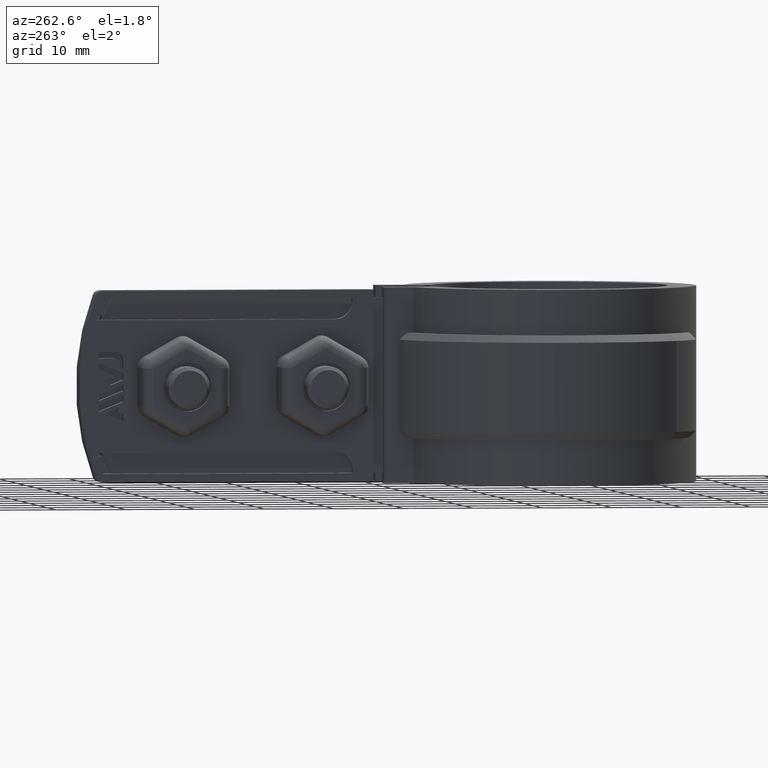
[diagram: clean part render]
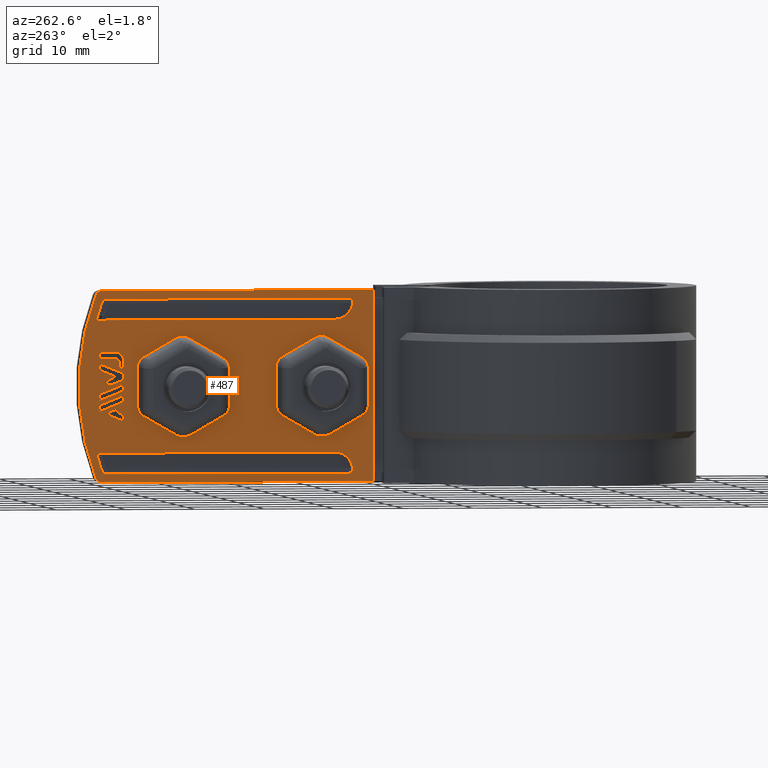
[diagram: same view with one face highlighted and labeled with its STEP entity id]
A machine part, auxiliary view. The second image highlights one B-rep face of the part: STEP entity #487.
In plain terms, the highlighted planar face has unit normal (-1, 0, -0).
Its self-contained STEP definition (entity closure, byte-faithful):
#487 = ADVANCED_FACE( '', ( #970, #971, #972, #973, #974, #975, #976, #977, #978, #979 ), #980, .T. );
#970 = FACE_OUTER_BOUND( '', #2094, .T. );
#971 = FACE_BOUND( '', #2095, .T. );
#972 = FACE_BOUND( '', #2096, .T. );
#973 = FACE_BOUND( '', #2097, .T. );
#974 = FACE_BOUND( '', #2098, .T. );
#975 = FACE_BOUND( '', #2099, .T. );
#976 = FACE_BOUND( '', #2100, .T. );
#977 = FACE_BOUND( '', #2101, .T. );
#978 = FACE_BOUND( '', #2102, .T. );
#979 = FACE_BOUND( '', #2103, .T. );
#980 = PLANE( '', #2104 );
#2094 = EDGE_LOOP( '', ( #4836, #4837, #4838, #4839, #4840, #4841 ) );
#2095 = EDGE_LOOP( '', ( #4842, #4843, #4844, #4845, #4846 ) );
#2096 = EDGE_LOOP( '', ( #4847, #4848, #4849, #4850 ) );
#2097 = EDGE_LOOP( '', ( #4851, #4852, #4853, #4854, #4855 ) );
#2098 = EDGE_LOOP( '', ( #4856, #4857, #4858, #4859, #4860, #4861, #4862, #4863, #4864, #4865, #4866, #4867 ) );
#2099 = EDGE_LOOP( '', ( #4868, #4869, #4870, #4871, #4872, #4873, #4874, #4875, #4876, #4877, #4878, #4879 ) );
#2100 = EDGE_LOOP( '', ( #4880, #4881, #4882, #4883, #4884 ) );
#2101 = EDGE_LOOP( '', ( #4885, #4886, #4887, #4888, #4889, #4890, #4891, #4892, #4893, #4894, #4895, #4896, #4897, #4898, #4899, #4900, #4901, #4902, #4903, #4904, #4905, #4906, #4907, #4908, #4909, #4910, #4911, #4912, #4913, #4914, #4915, #4916, #4917, #4918, #4919, #4920, #4921, #4922, #4923, #4924 ) );
#2102 = EDGE_LOOP( '', ( #4925, #4926, #4927, #4928, #4929, #4930, #4931 ) );
#2103 = EDGE_LOOP( '', ( #4932, #4933, #4934, #4935 ) );
#2104 = AXIS2_PLACEMENT_3D( '', #4936, #4937, #4938 );
#4836 = ORIENTED_EDGE( '', *, *, #6948, .T. );
#4837 = ORIENTED_EDGE( '', *, *, #6949, .T. );
#4838 = ORIENTED_EDGE( '', *, *, #6950, .T. );
#4839 = ORIENTED_EDGE( '', *, *, #6951, .T. );
#4840 = ORIENTED_EDGE( '', *, *, #6952, .T. );
#4841 = ORIENTED_EDGE( '', *, *, #6953, .T. );
#4842 = ORIENTED_EDGE( '', *, *, #6954, .T. );
#4843 = ORIENTED_EDGE( '', *, *, #6955, .T. );
#4844 = ORIENTED_EDGE( '', *, *, #6956, .T. );
#4845 = ORIENTED_EDGE( '', *, *, #6957, .T. );
#4846 = ORIENTED_EDGE( '', *, *, #6958, .T. );
#4847 = ORIENTED_EDGE( '', *, *, #6959, .T. );
#4848 = ORIENTED_EDGE( '', *, *, #6960, .T. );
#4849 = ORIENTED_EDGE( '', *, *, #6961, .T. );
#4850 = ORIENTED_EDGE( '', *, *, #6962, .T. );
#4851 = ORIENTED_EDGE( '', *, *, #6963, .T. );
#4852 = ORIENTED_EDGE( '', *, *, #6964, .F. );
#4853 = ORIENTED_EDGE( '', *, *, #6965, .T. );
#4854 = ORIENTED_EDGE( '', *, *, #6966, .T. );
#4855 = ORIENTED_EDGE( '', *, *, #6967, .T. );
#4856 = ORIENTED_EDGE( '', *, *, #6968, .F. );
#4857 = ORIENTED_EDGE( '', *, *, #6969, .F. );
#4858 = ORIENTED_EDGE( '', *, *, #6970, .F. );
#4859 = ORIENTED_EDGE( '', *, *, #6971, .F. );
#4860 = ORIENTED_EDGE( '', *, *, #6972, .F. );
#4861 = ORIENTED_EDGE( '', *, *, #6973, .F. );
#4862 = ORIENTED_EDGE( '', *, *, #6974, .F. );
#4863 = ORIENTED_EDGE( '', *, *, #6975, .F. );
#4864 = ORIENTED_EDGE( '', *, *, #6976, .F. );
#4865 = ORIENTED_EDGE( '', *, *, #6977, .F. );
#4866 = ORIENTED_EDGE( '', *, *, #6978, .F. );
#4867 = ORIENTED_EDGE( '', *, *, #6979, .F. );
#4868 = ORIENTED_EDGE( '', *, *, #6980, .F. );
#4869 = ORIENTED_EDGE( '', *, *, #6981, .F. );
#4870 = ORIENTED_EDGE( '', *, *, #6982, .F. );
#4871 = ORIENTED_EDGE( '', *, *, #6983, .F. );
#4872 = ORIENTED_EDGE( '', *, *, #6984, .F. );
#4873 = ORIENTED_EDGE( '', *, *, #6985, .F. );
#4874 = ORIENTED_EDGE( '', *, *, #6986, .F. );
#4875 = ORIENTED_EDGE( '', *, *, #6987, .F. );
#4876 = ORIENTED_EDGE( '', *, *, #6988, .F. );
#4877 = ORIENTED_EDGE( '', *, *, #6989, .F. );
#4878 = ORIENTED_EDGE( '', *, *, #6990, .F. );
#4879 = ORIENTED_EDGE( '', *, *, #6991, .F. );
#4880 = ORIENTED_EDGE( '', *, *, #6992, .T. );
#4881 = ORIENTED_EDGE( '', *, *, #6993, .T. );
#4882 = ORIENTED_EDGE( '', *, *, #6994, .T. );
#4883 = ORIENTED_EDGE( '', *, *, #6995, .T. );
#4884 = ORIENTED_EDGE( '', *, *, #6996, .F. );
#4885 = ORIENTED_EDGE( '', *, *, #6997, .T. );
#4886 = ORIENTED_EDGE( '', *, *, #6998, .T. );
#4887 = ORIENTED_EDGE( '', *, *, #6999, .T. );
#4888 = ORIENTED_EDGE( '', *, *, #7000, .T. );
#4889 = ORIENTED_EDGE( '', *, *, #7001, .T. );
#4890 = ORIENTED_EDGE( '', *, *, #7002, .T. );
#4891 = ORIENTED_EDGE( '', *, *, #7003, .T. );
#4892 = ORIENTED_EDGE( '', *, *, #7004, .T. );
#4893 = ORIENTED_EDGE( '', *, *, #7005, .T. );
#4894 = ORIENTED_EDGE( '', *, *, #7006, .T. );
#4895 = ORIENTED_EDGE( '', *, *, #7007, .T. );
#4896 = ORIENTED_EDGE( '', *, *, #7008, .T. );
#4897 = ORIENTED_EDGE( '', *, *, #7009, .T. );
#4898 = ORIENTED_EDGE( '', *, *, #7010, .T. );
#4899 = ORIENTED_EDGE( '', *, *, #7011, .T. );
#4900 = ORIENTED_EDGE( '', *, *, #7012, .T. );
#4901 = ORIENTED_EDGE( '', *, *, #7013, .T. );
#4902 = ORIENTED_EDGE( '', *, *, #7014, .T. );
#4903 = ORIENTED_EDGE( '', *, *, #7015, .T. );
#4904 = ORIENTED_EDGE( '', *, *, #7016, .T. );
#4905 = ORIENTED_EDGE( '', *, *, #7017, .T. );
#4906 = ORIENTED_EDGE( '', *, *, #7018, .T. );
#4907 = ORIENTED_EDGE( '', *, *, #7019, .T. );
#4908 = ORIENTED_EDGE( '', *, *, #7020, .T. );
#4909 = ORIENTED_EDGE( '', *, *, #7021, .T. );
#4910 = ORIENTED_EDGE( '', *, *, #7022, .T. );
#4911 = ORIENTED_EDGE( '', *, *, #7023, .T. );
#4912 = ORIENTED_EDGE( '', *, *, #7024, .T. );
#4913 = ORIENTED_EDGE( '', *, *, #7025, .T. );
#4914 = ORIENTED_EDGE( '', *, *, #7026, .T. );
#4915 = ORIENTED_EDGE( '', *, *, #7027, .T. );
#4916 = ORIENTED_EDGE( '', *, *, #7028, .T. );
#4917 = ORIENTED_EDGE( '', *, *, #7029, .T. );
#4918 = ORIENTED_EDGE( '', *, *, #7030, .T. );
#4919 = ORIENTED_EDGE( '', *, *, #7031, .T. );
#4920 = ORIENTED_EDGE( '', *, *, #7032, .T. );
#4921 = ORIENTED_EDGE( '', *, *, #7033, .T. );
#4922 = ORIENTED_EDGE( '', *, *, #7034, .T. );
#4923 = ORIENTED_EDGE( '', *, *, #7035, .T. );
#4924 = ORIENTED_EDGE( '', *, *, #7036, .T. );
#4925 = ORIENTED_EDGE( '', *, *, #7037, .T. );
#4926 = ORIENTED_EDGE( '', *, *, #7038, .T. );
#4927 = ORIENTED_EDGE( '', *, *, #7039, .T. );
#4928 = ORIENTED_EDGE( '', *, *, #7040, .T. );
#4929 = ORIENTED_EDGE( '', *, *, #7041, .T. );
#4930 = ORIENTED_EDGE( '', *, *, #7042, .T. );
#4931 = ORIENTED_EDGE( '', *, *, #7043, .T. );
#4932 = ORIENTED_EDGE( '', *, *, #7044, .T. );
#4933 = ORIENTED_EDGE( '', *, *, #7045, .T. );
#4934 = ORIENTED_EDGE( '', *, *, #7046, .T. );
#4935 = ORIENTED_EDGE( '', *, *, #7047, .T. );
#4936 = CARTESIAN_POINT( '', ( -6.70000000000002, 32.1043584449257, -12.4999999999987 ) );
#4937 = DIRECTION( '', ( -1.00000000000000, 7.00331983426594E-017, -2.99848040556711E-018 ) );
#4938 = DIRECTION( '', ( -2.99848040556711E-018, 0.000000000000000, 1.00000000000000 ) );
#6948 = EDGE_CURVE( '', #8112, #8113, #8114, .T. );
#6949 = EDGE_CURVE( '', #8113, #8115, #8116, .T. );
#6950 = EDGE_CURVE( '', #8115, #8117, #8118, .T. );
#6951 = EDGE_CURVE( '', #8117, #8119, #8120, .T. );
#6952 = EDGE_CURVE( '', #8119, #8121, #8122, .T. );
#6953 = EDGE_CURVE( '', #8121, #8112, #8123, .T. );
#6954 = EDGE_CURVE( '', #8124, #8125, #8126, .T. );
#6955 = EDGE_CURVE( '', #8125, #8127, #8128, .T. );
#6956 = EDGE_CURVE( '', #8127, #8129, #8130, .T. );
#6957 = EDGE_CURVE( '', #8129, #8131, #8132, .T. );
#6958 = EDGE_CURVE( '', #8131, #8124, #8133, .T. );
#6959 = EDGE_CURVE( '', #8134, #8135, #8136, .T. );
#6960 = EDGE_CURVE( '', #8135, #8137, #8138, .T. );
#6961 = EDGE_CURVE( '', #8137, #8139, #8140, .T. );
#6962 = EDGE_CURVE( '', #8139, #8134, #8141, .T. );
#6963 = EDGE_CURVE( '', #8142, #8143, #8144, .T. );
#6964 = EDGE_CURVE( '', #8145, #8143, #8146, .T. );
#6965 = EDGE_CURVE( '', #8145, #8147, #8148, .T. );
#6966 = EDGE_CURVE( '', #8147, #8149, #8150, .T. );
#6967 = EDGE_CURVE( '', #8149, #8142, #8151, .T. );
#6968 = EDGE_CURVE( '', #8152, #8153, #8154, .T. );
#6969 = EDGE_CURVE( '', #8155, #8152, #8156, .T. );
#6970 = EDGE_CURVE( '', #8157, #8155, #8158, .T. );
#6971 = EDGE_CURVE( '', #8159, #8157, #8160, .T. );
#6972 = EDGE_CURVE( '', #8161, #8159, #8162, .T. );
#6973 = EDGE_CURVE( '', #8163, #8161, #8164, .T. );
#6974 = EDGE_CURVE( '', #8165, #8163, #8166, .T. );
#6975 = EDGE_CURVE( '', #8167, #8165, #8168, .T. );
#6976 = EDGE_CURVE( '', #8169, #8167, #8170, .T. );
#6977 = EDGE_CURVE( '', #8171, #8169, #8172, .T. );
#6978 = EDGE_CURVE( '', #8173, #8171, #8174, .T. );
#6979 = EDGE_CURVE( '', #8153, #8173, #8175, .T. );
#6980 = EDGE_CURVE( '', #8176, #8177, #8178, .T. );
#6981 = EDGE_CURVE( '', #8179, #8176, #8180, .T. );
#6982 = EDGE_CURVE( '', #8181, #8179, #8182, .T. );
#6983 = EDGE_CURVE( '', #8183, #8181, #8184, .T. );
#6984 = EDGE_CURVE( '', #8185, #8183, #8186, .T. );
#6985 = EDGE_CURVE( '', #8187, #8185, #8188, .T. );
#6986 = EDGE_CURVE( '', #8189, #8187, #8190, .T. );
#6987 = EDGE_CURVE( '', #8191, #8189, #8192, .T. );
#6988 = EDGE_CURVE( '', #8193, #8191, #8194, .T. );
#6989 = EDGE_CURVE( '', #8195, #8193, #8196, .T. );
#6990 = EDGE_CURVE( '', #8197, #8195, #8198, .T. );
#6991 = EDGE_CURVE( '', #8177, #8197, #8199, .T. );
#6992 = EDGE_CURVE( '', #8200, #8201, #8202, .T. );
#6993 = EDGE_CURVE( '', #8201, #8203, #8204, .T. );
#6994 = EDGE_CURVE( '', #8203, #8205, #8206, .T. );
#6995 = EDGE_CURVE( '', #8205, #8207, #8208, .T. );
#6996 = EDGE_CURVE( '', #8200, #8207, #8209, .T. );
#6997 = EDGE_CURVE( '', #8210, #8211, #8212, .T. );
#6998 = EDGE_CURVE( '', #8211, #8213, #8214, .T. );
#6999 = EDGE_CURVE( '', #8213, #8215, #8216, .T. );
#7000 = EDGE_CURVE( '', #8215, #8217, #8218, .T. );
#7001 = EDGE_CURVE( '', #8217, #8219, #8220, .T. );
#7002 = EDGE_CURVE( '', #8219, #8221, #8222, .T. );
#7003 = EDGE_CURVE( '', #8221, #8223, #8224, .T. );
#7004 = EDGE_CURVE( '', #8223, #8225, #8226, .T. );
#7005 = EDGE_CURVE( '', #8225, #8227, #8228, .T. );
#7006 = EDGE_CURVE( '', #8227, #8229, #8230, .T. );
#7007 = EDGE_CURVE( '', #8229, #8231, #8232, .T. );
#7008 = EDGE_CURVE( '', #8231, #8233, #8234, .T. );
#7009 = EDGE_CURVE( '', #8233, #8235, #8236, .T. );
#7010 = EDGE_CURVE( '', #8235, #8237, #8238, .T. );
#7011 = EDGE_CURVE( '', #8237, #8239, #8240, .T. );
#7012 = EDGE_CURVE( '', #8239, #8241, #8242, .T. );
#7013 = EDGE_CURVE( '', #8241, #8243, #8244, .T. );
#7014 = EDGE_CURVE( '', #8243, #8245, #8246, .T. );
#7015 = EDGE_CURVE( '', #8245, #8247, #8248, .T. );
#7016 = EDGE_CURVE( '', #8247, #8249, #8250, .T. );
#7017 = EDGE_CURVE( '', #8249, #8251, #8252, .T. );
#7018 = EDGE_CURVE( '', #8251, #8253, #8254, .T. );
#7019 = EDGE_CURVE( '', #8253, #8255, #8256, .T. );
#7020 = EDGE_CURVE( '', #8255, #8257, #8258, .T. );
#7021 = EDGE_CURVE( '', #8257, #8259, #8260, .T. );
#7022 = EDGE_CURVE( '', #8259, #8261, #8262, .T. );
#7023 = EDGE_CURVE( '', #8261, #8263, #8264, .T. );
#7024 = EDGE_CURVE( '', #8263, #8265, #8266, .T. );
#7025 = EDGE_CURVE( '', #8265, #8267, #8268, .T. );
#7026 = EDGE_CURVE( '', #8267, #8269, #8270, .T. );
#7027 = EDGE_CURVE( '', #8269, #8271, #8272, .T. );
#7028 = EDGE_CURVE( '', #8271, #8273, #8274, .T. );
#7029 = EDGE_CURVE( '', #8273, #8275, #8276, .T. );
#7030 = EDGE_CURVE( '', #8275, #8277, #8278, .T. );
#7031 = EDGE_CURVE( '', #8277, #8279, #8280, .T. );
#7032 = EDGE_CURVE( '', #8279, #8281, #8282, .T. );
#7033 = EDGE_CURVE( '', #8281, #8283, #8284, .T. );
#7034 = EDGE_CURVE( '', #8283, #8285, #8286, .T. );
#7035 = EDGE_CURVE( '', #8285, #8287, #8288, .T. );
#7036 = EDGE_CURVE( '', #8287, #8210, #8289, .T. );
#7037 = EDGE_CURVE( '', #8290, #8291, #8292, .T. );
#7038 = EDGE_CURVE( '', #8291, #8293, #8294, .T. );
#7039 = EDGE_CURVE( '', #8293, #8295, #8296, .T. );
#7040 = EDGE_CURVE( '', #8295, #8297, #8298, .T. );
#7041 = EDGE_CURVE( '', #8297, #8299, #8300, .T. );
#7042 = EDGE_CURVE( '', #8299, #8301, #8302, .T. );
#7043 = EDGE_CURVE( '', #8301, #8290, #8303, .T. );
#7044 = EDGE_CURVE( '', #8304, #8305, #8306, .T. );
#7045 = EDGE_CURVE( '', #8305, #8307, #8308, .T. );
#7046 = EDGE_CURVE( '', #8307, #8309, #8310, .T. );
#7047 = EDGE_CURVE( '', #8309, #8304, #8311, .T. );
#8112 = VERTEX_POINT( '', #11306 );
#8113 = VERTEX_POINT( '', #11307 );
#8114 = CIRCLE( '', #11308, 36.4000000000000 );
#8115 = VERTEX_POINT( '', #11309 );
#8116 = CIRCLE( '', #11310, 1.00000000000000 );
#8117 = VERTEX_POINT( '', #11311 );
#8118 = LINE( '', #11312, #11313 );
#8119 = VERTEX_POINT( '', #11314 );
#8120 = LINE( '', #11315, #11316 );
#8121 = VERTEX_POINT( '', #11317 );
#8122 = LINE( '', #11318, #11319 );
#8123 = CIRCLE( '', #11320, 1.00000000000000 );
#8124 = VERTEX_POINT( '', #11321 );
#8125 = VERTEX_POINT( '', #11322 );
#8126 = LINE( '', #11323, #11324 );
#8127 = VERTEX_POINT( '', #11325 );
#8128 = LINE( '', #11326, #11327 );
#8129 = VERTEX_POINT( '', #11328 );
#8130 = LINE( '', #11329, #11330 );
#8131 = VERTEX_POINT( '', #11331 );
#8132 = LINE( '', #11332, #11333 );
#8133 = LINE( '', #11334, #11335 );
#8134 = VERTEX_POINT( '', #11336 );
#8135 = VERTEX_POINT( '', #11337 );
#8136 = LINE( '', #11338, #11339 );
#8137 = VERTEX_POINT( '', #11340 );
#8138 = LINE( '', #11341, #11342 );
#8139 = VERTEX_POINT( '', #11343 );
#8140 = LINE( '', #11344, #11345 );
#8141 = LINE( '', #11346, #11347 );
#8142 = VERTEX_POINT( '', #11348 );
#8143 = VERTEX_POINT( '', #11349 );
#8144 = CIRCLE( '', #11350, 35.2000000000000 );
#8145 = VERTEX_POINT( '', #11351 );
#8146 = LINE( '', #11352, #11353 );
#8147 = VERTEX_POINT( '', #11354 );
#8148 = LINE( '', #11355, #11356 );
#8149 = VERTEX_POINT( '', #11357 );
#8150 = CIRCLE( '', #11358, 2.50000000000000 );
#8151 = LINE( '', #11359, #11360 );
#8152 = VERTEX_POINT( '', #11361 );
#8153 = VERTEX_POINT( '', #11362 );
#8154 = LINE( '', #11363, #11364 );
#8155 = VERTEX_POINT( '', #11365 );
#8156 = CIRCLE( '', #11366, 1.77252045227181 );
#8157 = VERTEX_POINT( '', #11367 );
#8158 = LINE( '', #11368, #11369 );
#8159 = VERTEX_POINT( '', #11370 );
#8160 = CIRCLE( '', #11371, 1.77252045227181 );
#8161 = VERTEX_POINT( '', #11372 );
#8162 = LINE( '', #11373, #11374 );
#8163 = VERTEX_POINT( '', #11375 );
#8164 = CIRCLE( '', #11376, 1.77252045227182 );
#8165 = VERTEX_POINT( '', #11377 );
#8166 = LINE( '', #11378, #11379 );
#8167 = VERTEX_POINT( '', #11380 );
#8168 = CIRCLE( '', #11381, 1.77252045227182 );
#8169 = VERTEX_POINT( '', #11382 );
#8170 = LINE( '', #11383, #11384 );
#8171 = VERTEX_POINT( '', #11385 );
#8172 = CIRCLE( '', #11386, 1.77252045227181 );
#8173 = VERTEX_POINT( '', #11387 );
#8174 = LINE( '', #11388, #11389 );
#8175 = CIRCLE( '', #11390, 1.77252045227182 );
#8176 = VERTEX_POINT( '', #11391 );
#8177 = VERTEX_POINT( '', #11392 );
#8178 = LINE( '', #11393, #11394 );
#8179 = VERTEX_POINT( '', #11395 );
#8180 = CIRCLE( '', #11396, 1.77252045227181 );
#8181 = VERTEX_POINT( '', #11397 );
#8182 = LINE( '', #11398, #11399 );
#8183 = VERTEX_POINT( '', #11400 );
#8184 = CIRCLE( '', #11401, 1.77252045227181 );
#8185 = VERTEX_POINT( '', #11402 );
#8186 = LINE( '', #11403, #11404 );
#8187 = VERTEX_POINT( '', #11405 );
#8188 = CIRCLE( '', #11406, 1.77252045227181 );
#8189 = VERTEX_POINT( '', #11407 );
#8190 = LINE( '', #11408, #11409 );
#8191 = VERTEX_POINT( '', #11410 );
#8192 = CIRCLE( '', #11411, 1.77252045227182 );
#8193 = VERTEX_POINT( '', #11412 );
#8194 = LINE( '', #11413, #11414 );
#8195 = VERTEX_POINT( '', #11415 );
#8196 = CIRCLE( '', #11416, 1.77252045227181 );
#8197 = VERTEX_POINT( '', #11417 );
#8198 = LINE( '', #11418, #11419 );
#8199 = CIRCLE( '', #11420, 1.77252045227182 );
#8200 = VERTEX_POINT( '', #11421 );
#8201 = VERTEX_POINT( '', #11422 );
#8202 = CIRCLE( '', #11423, 35.2000000000000 );
#8203 = VERTEX_POINT( '', #11424 );
#8204 = LINE( '', #11425, #11426 );
#8205 = VERTEX_POINT( '', #11427 );
#8206 = CIRCLE( '', #11428, 2.50000000000000 );
#8207 = VERTEX_POINT( '', #11429 );
#8208 = LINE( '', #11430, #11431 );
#8209 = LINE( '', #11432, #11433 );
#8210 = VERTEX_POINT( '', #11434 );
#8211 = VERTEX_POINT( '', #11435 );
#8212 = LINE( '', #11436, #11437 );
#8213 = VERTEX_POINT( '', #11438 );
#8214 = LINE( '', #11439, #11440 );
#8215 = VERTEX_POINT( '', #11441 );
#8216 = LINE( '', #11442, #11443 );
#8217 = VERTEX_POINT( '', #11444 );
#8218 = LINE( '', #11445, #11446 );
#8219 = VERTEX_POINT( '', #11447 );
#8220 = LINE( '', #11448, #11449 );
#8221 = VERTEX_POINT( '', #11450 );
#8222 = LINE( '', #11451, #11452 );
#8223 = VERTEX_POINT( '', #11453 );
#8224 = LINE( '', #11454, #11455 );
#8225 = VERTEX_POINT( '', #11456 );
#8226 = LINE( '', #11457, #11458 );
#8227 = VERTEX_POINT( '', #11459 );
#8228 = LINE( '', #11460, #11461 );
#8229 = VERTEX_POINT( '', #11462 );
#8230 = LINE( '', #11463, #11464 );
#8231 = VERTEX_POINT( '', #11465 );
#8232 = LINE( '', #11466, #11467 );
#8233 = VERTEX_POINT( '', #11468 );
#8234 = LINE( '', #11469, #11470 );
#8235 = VERTEX_POINT( '', #11471 );
#8236 = LINE( '', #11472, #11473 );
#8237 = VERTEX_POINT( '', #11474 );
#8238 = LINE( '', #11475, #11476 );
#8239 = VERTEX_POINT( '', #11477 );
#8240 = LINE( '', #11478, #11479 );
#8241 = VERTEX_POINT( '', #11480 );
#8242 = LINE( '', #11481, #11482 );
#8243 = VERTEX_POINT( '', #11483 );
#8244 = LINE( '', #11484, #11485 );
#8245 = VERTEX_POINT( '', #11486 );
#8246 = LINE( '', #11487, #11488 );
#8247 = VERTEX_POINT( '', #11489 );
#8248 = LINE( '', #11490, #11491 );
#8249 = VERTEX_POINT( '', #11492 );
#8250 = LINE( '', #11493, #11494 );
#8251 = VERTEX_POINT( '', #11495 );
#8252 = LINE( '', #11496, #11497 );
#8253 = VERTEX_POINT( '', #11498 );
#8254 = LINE( '', #11499, #11500 );
#8255 = VERTEX_POINT( '', #11501 );
#8256 = LINE( '', #11502, #11503 );
#8257 = VERTEX_POINT( '', #11504 );
#8258 = LINE( '', #11505, #11506 );
#8259 = VERTEX_POINT( '', #11507 );
#8260 = LINE( '', #11508, #11509 );
#8261 = VERTEX_POINT( '', #11510 );
#8262 = LINE( '', #11511, #11512 );
#8263 = VERTEX_POINT( '', #11513 );
#8264 = LINE( '', #11514, #11515 );
#8265 = VERTEX_POINT( '', #11516 );
#8266 = LINE( '', #11517, #11518 );
#8267 = VERTEX_POINT( '', #11519 );
#8268 = LINE( '', #11520, #11521 );
#8269 = VERTEX_POINT( '', #11522 );
#8270 = LINE( '', #11523, #11524 );
#8271 = VERTEX_POINT( '', #11525 );
#8272 = LINE( '', #11526, #11527 );
#8273 = VERTEX_POINT( '', #11528 );
#8274 = LINE( '', #11529, #11530 );
#8275 = VERTEX_POINT( '', #11531 );
#8276 = LINE( '', #11532, #11533 );
#8277 = VERTEX_POINT( '', #11534 );
#8278 = LINE( '', #11535, #11536 );
#8279 = VERTEX_POINT( '', #11537 );
#8280 = LINE( '', #11538, #11539 );
#8281 = VERTEX_POINT( '', #11540 );
#8282 = LINE( '', #11541, #11542 );
#8283 = VERTEX_POINT( '', #11543 );
#8284 = LINE( '', #11544, #11545 );
#8285 = VERTEX_POINT( '', #11546 );
#8286 = LINE( '', #11547, #11548 );
#8287 = VERTEX_POINT( '', #11549 );
#8288 = LINE( '', #11550, #11551 );
#8289 = CIRCLE( '', #11552, 1.16712912069193 );
#8290 = VERTEX_POINT( '', #11553 );
#8291 = VERTEX_POINT( '', #11554 );
#8292 = LINE( '', #11555, #11556 );
#8293 = VERTEX_POINT( '', #11557 );
#8294 = LINE( '', #11558, #11559 );
#8295 = VERTEX_POINT( '', #11560 );
#8296 = LINE( '', #11561, #11562 );
#8297 = VERTEX_POINT( '', #11563 );
#8298 = LINE( '', #11564, #11565 );
#8299 = VERTEX_POINT( '', #11566 );
#8300 = LINE( '', #11567, #11568 );
#8301 = VERTEX_POINT( '', #11569 );
#8302 = LINE( '', #11570, #11571 );
#8303 = LINE( '', #11572, #11573 );
#8304 = VERTEX_POINT( '', #11574 );
#8305 = VERTEX_POINT( '', #11575 );
#8306 = LINE( '', #11576, #11577 );
#8307 = VERTEX_POINT( '', #11578 );
#8308 = LINE( '', #11579, #11580 );
#8309 = VERTEX_POINT( '', #11581 );
#8310 = LINE( '', #11582, #11583 );
#8311 = LINE( '', #11584, #11585 );
#11306 = CARTESIAN_POINT( '', ( -6.70000000000002, 66.0812456477262, 0.558757062148177 ) );
#11307 = CARTESIAN_POINT( '', ( -6.70000000000002, 66.0812456477262, -25.5587570621456 ) );
#11308 = AXIS2_PLACEMENT_3D( '', #13156, #13157, #13158 );
#11309 = CARTESIAN_POINT( '', ( -6.70000000000002, 65.1478146806163, -26.1999999999987 ) );
#11310 = AXIS2_PLACEMENT_3D( '', #13159, #13160, #13161 );
#11311 = CARTESIAN_POINT( '', ( -6.70000000000002, 26.1043584449257, -26.1999999999987 ) );
#11312 = CARTESIAN_POINT( '', ( -6.70000000000002, 29.1043584449257, -26.1999999999987 ) );
#11313 = VECTOR( '', #13162, 1000.00000000000 );
#11314 = CARTESIAN_POINT( '', ( -6.70000000000002, 26.1043584449257, 1.20000000000128 ) );
#11315 = CARTESIAN_POINT( '', ( -6.70000000000002, 26.1043584449257, -26.1999999999987 ) );
#11316 = VECTOR( '', #13163, 1000.00000000000 );
#11317 = CARTESIAN_POINT( '', ( -6.70000000000002, 65.1478146806163, 1.20000000000129 ) );
#11318 = CARTESIAN_POINT( '', ( -6.70000000000002, 26.1043584449257, 1.20000000000128 ) );
#11319 = VECTOR( '', #13164, 1000.00000000000 );
#11320 = AXIS2_PLACEMENT_3D( '', #13165, #13166, #13167 );
#11321 = CARTESIAN_POINT( '', ( -6.70000000000002, 62.9160564617004, -15.6427309999987 ) );
#11322 = CARTESIAN_POINT( '', ( -6.70000000000002, 62.9160564617004, -16.2049013519987 ) );
#11323 = CARTESIAN_POINT( '', ( -6.70000000000002, 62.9160564617004, -12.4999999999987 ) );
#11324 = VECTOR( '', #13168, 1000.00000000000 );
#11325 = CARTESIAN_POINT( '', ( -6.70000000000002, 62.1080505577004, -16.5315944439987 ) );
#11326 = CARTESIAN_POINT( '', ( -6.70000000000002, 37.7210703295546, -26.3917426630093 ) );
#11327 = VECTOR( '', #13169, 1000.00000000000 );
#11328 = CARTESIAN_POINT( '', ( -6.70000000000002, 62.1080505577004, -17.4353519199987 ) );
#11329 = CARTESIAN_POINT( '', ( -6.70000000000002, 62.1080505577004, -12.4999999999987 ) );
#11330 = VECTOR( '', #13170, 1000.00000000000 );
#11331 = CARTESIAN_POINT( '', ( -6.70000000000002, 64.7310876717004, -16.3757128079987 ) );
#11332 = CARTESIAN_POINT( '', ( -6.70000000000002, 38.0278787156955, -27.1631181690085 ) );
#11333 = VECTOR( '', #13171, 1000.00000000000 );
#11334 = CARTESIAN_POINT( '', ( -6.70000000000002, 35.3335371024003, -4.50381239750574 ) );
#11335 = VECTOR( '', #13172, 1000.00000000000 );
#11336 = CARTESIAN_POINT( '', ( -6.70000000000002, 65.6064893817004, -14.5449628859987 ) );
#11337 = CARTESIAN_POINT( '', ( -6.70000000000002, 65.6064893817004, -13.6409432239987 ) );
#11338 = CARTESIAN_POINT( '', ( -6.70000000000002, 65.6064893817004, -12.4999999999987 ) );
#11339 = VECTOR( '', #13173, 1000.00000000000 );
#11340 = CARTESIAN_POINT( '', ( -6.70000000000002, 62.1080505577004, -12.2273304499987 ) );
#11341 = CARTESIAN_POINT( '', ( -6.70000000000002, 36.4102701241338, -1.84363860575991 ) );
#11342 = VECTOR( '', #13174, 1000.00000000000 );
#11343 = CARTESIAN_POINT( '', ( -6.70000000000002, 62.1080505577004, -13.1313508899987 ) );
#11344 = CARTESIAN_POINT( '', ( -6.70000000000002, 62.1080505577004, -12.4999999999987 ) );
#11345 = VECTOR( '', #13175, 1000.00000000000 );
#11346 = CARTESIAN_POINT( '', ( -6.70000000000002, 36.0962492969591, -2.62077856056481 ) );
#11347 = VECTOR( '', #13176, 1000.00000000000 );
#11348 = CARTESIAN_POINT( '', ( -6.70000000000002, 65.9981631885658, -2.99999999999871 ) );
#11349 = CARTESIAN_POINT( '', ( -6.70000000000003, 65.0101330141407, 1.28450559688834E-012 ) );
#11350 = AXIS2_PLACEMENT_3D( '', #13177, #13178, #13179 );
#11351 = CARTESIAN_POINT( '', ( -6.70000000000002, 29.1043584449257, 1.29032913615598E-012 ) );
#11352 = CARTESIAN_POINT( '', ( -6.70000000000002, 26.1043584449257, 1.29206385963195E-012 ) );
#11353 = VECTOR( '', #13180, 1000.00000000000 );
#11354 = CARTESIAN_POINT( '', ( -6.70000000000002, 29.1043584449257, -0.499999999998708 ) );
#11355 = CARTESIAN_POINT( '', ( -6.70000000000002, 29.1043584449257, 1.20000000000128 ) );
#11356 = VECTOR( '', #13181, 1000.00000000000 );
#11357 = CARTESIAN_POINT( '', ( -6.70000000000002, 31.6043584449257, -2.99999999999871 ) );
#11358 = AXIS2_PLACEMENT_3D( '', #13182, #13183, #13184 );
#11359 = CARTESIAN_POINT( '', ( -6.70000000000002, 31.6043584449257, -2.99999999999871 ) );
#11360 = VECTOR( '', #13185, 1000.00000000000 );
#11361 = CARTESIAN_POINT( '', ( -6.70000000000002, 60.0768788971975, -9.78645373480746 ) );
#11362 = CARTESIAN_POINT( '', ( -6.70000000000002, 60.0768788971975, -15.2135462651900 ) );
#11363 = CARTESIAN_POINT( '', ( -6.70000000000002, 60.0768788971975, -15.2135462651899 ) );
#11364 = VECTOR( '', #13186, 1000.00000000000 );
#11365 = CARTESIAN_POINT( '', ( -6.70000000000002, 59.1906186710616, -8.25140599441259 ) );
#11366 = AXIS2_PLACEMENT_3D( '', #13187, #13188, #13189 );
#11367 = CARTESIAN_POINT( '', ( -6.70000000000002, 54.4906186710615, -5.53785972922136 ) );
#11368 = CARTESIAN_POINT( '', ( -6.70000000000002, 61.5406186710615, -9.60817912700820 ) );
#11369 = VECTOR( '', #13190, 1000.00000000000 );
#11370 = CARTESIAN_POINT( '', ( -6.70000000000002, 52.7180982187897, -5.53785972922135 ) );
#11371 = AXIS2_PLACEMENT_3D( '', #13191, #13192, #13193 );
#11372 = CARTESIAN_POINT( '', ( -6.70000000000002, 48.0180982187897, -8.25140599441259 ) );
#11373 = CARTESIAN_POINT( '', ( -6.70000000000002, 52.7180982187897, -5.53785972922135 ) );
#11374 = VECTOR( '', #13194, 1000.00000000000 );
#11375 = CARTESIAN_POINT( '', ( -6.70000000000002, 47.1318379926538, -9.78645373480746 ) );
#11376 = AXIS2_PLACEMENT_3D( '', #13195, #13196, #13197 );
#11377 = CARTESIAN_POINT( '', ( -6.70000000000002, 47.1318379926538, -15.2135462651899 ) );
#11378 = CARTESIAN_POINT( '', ( -6.70000000000002, 47.1318379926538, -15.2135462651899 ) );
#11379 = VECTOR( '', #13198, 1000.00000000000 );
#11380 = CARTESIAN_POINT( '', ( -6.70000000000002, 48.0180982187897, -16.7485940055848 ) );
#11381 = AXIS2_PLACEMENT_3D( '', #13199, #13200, #13201 );
#11382 = CARTESIAN_POINT( '', ( -6.70000000000002, 52.7180982187897, -19.4621402707761 ) );
#11383 = CARTESIAN_POINT( '', ( -6.70000000000002, 55.0680982187897, -20.8189134033717 ) );
#11384 = VECTOR( '', #13202, 1000.00000000000 );
#11385 = CARTESIAN_POINT( '', ( -6.70000000000002, 54.4906186710616, -19.4621402707761 ) );
#11386 = AXIS2_PLACEMENT_3D( '', #13203, #13204, #13205 );
#11387 = CARTESIAN_POINT( '', ( -6.70000000000002, 59.1906186710616, -16.7485940055848 ) );
#11388 = CARTESIAN_POINT( '', ( -6.70000000000002, 59.1906186710615, -16.7485940055848 ) );
#11389 = VECTOR( '', #13206, 1000.00000000000 );
#11390 = AXIS2_PLACEMENT_3D( '', #13207, #13208, #13209 );
#11391 = CARTESIAN_POINT( '', ( -6.70000000000002, 40.0768788971975, -9.78645373480747 ) );
#11392 = CARTESIAN_POINT( '', ( -6.70000000000002, 40.0768788971975, -15.2135462651899 ) );
#11393 = CARTESIAN_POINT( '', ( -6.70000000000002, 40.0768788971975, -15.2135462651899 ) );
#11394 = VECTOR( '', #13210, 1000.00000000000 );
#11395 = CARTESIAN_POINT( '', ( -6.70000000000002, 39.1906186710616, -8.25140599441260 ) );
#11396 = AXIS2_PLACEMENT_3D( '', #13211, #13212, #13213 );
#11397 = CARTESIAN_POINT( '', ( -6.70000000000002, 34.4906186710616, -5.53785972922135 ) );
#11398 = CARTESIAN_POINT( '', ( -6.70000000000002, 41.5406186710615, -9.60817912700821 ) );
#11399 = VECTOR( '', #13214, 1000.00000000000 );
#11400 = CARTESIAN_POINT( '', ( -6.70000000000002, 32.7180982187897, -5.53785972922135 ) );
#11401 = AXIS2_PLACEMENT_3D( '', #13215, #13216, #13217 );
#11402 = CARTESIAN_POINT( '', ( -6.70000000000002, 28.0180982187897, -8.25140599441260 ) );
#11403 = CARTESIAN_POINT( '', ( -6.70000000000002, 32.7180982187897, -5.53785972922135 ) );
#11404 = VECTOR( '', #13218, 1000.00000000000 );
#11405 = CARTESIAN_POINT( '', ( -6.70000000000002, 27.1318379926538, -9.78645373480746 ) );
#11406 = AXIS2_PLACEMENT_3D( '', #13219, #13220, #13221 );
#11407 = CARTESIAN_POINT( '', ( -6.70000000000002, 27.1318379926538, -15.2135462651899 ) );
#11408 = CARTESIAN_POINT( '', ( -6.70000000000002, 27.1318379926538, -15.2135462651899 ) );
#11409 = VECTOR( '', #13222, 1000.00000000000 );
#11410 = CARTESIAN_POINT( '', ( -6.70000000000002, 28.0180982187897, -16.7485940055848 ) );
#11411 = AXIS2_PLACEMENT_3D( '', #13223, #13224, #13225 );
#11412 = CARTESIAN_POINT( '', ( -6.70000000000002, 32.7180982187898, -19.4621402707761 ) );
#11413 = CARTESIAN_POINT( '', ( -6.70000000000002, 35.0680982187897, -20.8189134033717 ) );
#11414 = VECTOR( '', #13226, 1000.00000000000 );
#11415 = CARTESIAN_POINT( '', ( -6.70000000000002, 34.4906186710616, -19.4621402707761 ) );
#11416 = AXIS2_PLACEMENT_3D( '', #13227, #13228, #13229 );
#11417 = CARTESIAN_POINT( '', ( -6.70000000000002, 39.1906186710616, -16.7485940055848 ) );
#11418 = CARTESIAN_POINT( '', ( -6.70000000000002, 39.1906186710616, -16.7485940055848 ) );
#11419 = VECTOR( '', #13230, 1000.00000000000 );
#11420 = AXIS2_PLACEMENT_3D( '', #13231, #13232, #13233 );
#11421 = CARTESIAN_POINT( '', ( -6.70000000000002, 65.0101330141407, -24.9999999999987 ) );
#11422 = CARTESIAN_POINT( '', ( -6.70000000000003, 65.9981631885658, -21.9999999999987 ) );
#11423 = AXIS2_PLACEMENT_3D( '', #13234, #13235, #13236 );
#11424 = CARTESIAN_POINT( '', ( -6.70000000000002, 31.6043584449257, -21.9999999999987 ) );
#11425 = CARTESIAN_POINT( '', ( -6.70000000000002, 66.8282695149650, -21.9999999999987 ) );
#11426 = VECTOR( '', #13237, 1000.00000000000 );
#11427 = CARTESIAN_POINT( '', ( -6.70000000000002, 29.1043584449257, -24.4999999999987 ) );
#11428 = AXIS2_PLACEMENT_3D( '', #13238, #13239, #13240 );
#11429 = CARTESIAN_POINT( '', ( -6.70000000000002, 29.1043584449257, -24.9999999999987 ) );
#11430 = CARTESIAN_POINT( '', ( -6.70000000000002, 29.1043584449257, -24.4999999999987 ) );
#11431 = VECTOR( '', #13241, 1000.00000000000 );
#11432 = CARTESIAN_POINT( '', ( -6.70000000000002, 64.7961005214808, -24.9999999999987 ) );
#11433 = VECTOR( '', #13242, 1000.00000000000 );
#11434 = CARTESIAN_POINT( '', ( -6.70000000000002, 62.1080505648390, -8.74297971174735 ) );
#11435 = CARTESIAN_POINT( '', ( -6.70000000000002, 62.1080505577004, -9.97073444799871 ) );
#11436 = CARTESIAN_POINT( '', ( -6.70000000000002, 62.1080505429944, -12.5000001744502 ) );
#11437 = VECTOR( '', #13243, 1000.00000000000 );
#11438 = CARTESIAN_POINT( '', ( -6.70000000000002, 62.6167902037004, -9.76519073799871 ) );
#11439 = CARTESIAN_POINT( '', ( -6.70000000000002, 35.4362773744963, -20.7468067581841 ) );
#11440 = VECTOR( '', #13244, 1000.00000000000 );
#11441 = CARTESIAN_POINT( '', ( -6.70000000000002, 62.6167902037004, -9.26826424399871 ) );
#11442 = CARTESIAN_POINT( '', ( -6.70000000000002, 62.6167902037004, -12.4999999999987 ) );
#11443 = VECTOR( '', #13245, 1000.00000000000 );
#11444 = CARTESIAN_POINT( '', ( -6.70000000000002, 62.6174872917004, -9.23547076599871 ) );
#11445 = CARTESIAN_POINT( '', ( -6.70000000000002, 62.5343435109208, -13.1468474441670 ) );
#11446 = VECTOR( '', #13246, 1000.00000000000 );
#11447 = CARTESIAN_POINT( '', ( -6.70000000000002, 62.6195707757004, -9.20269440399872 ) );
#11448 = CARTESIAN_POINT( '', ( -6.70000000000002, 62.2880083555114, -14.4186739410073 ) );
#11449 = VECTOR( '', #13247, 1000.00000000000 );
#11450 = CARTESIAN_POINT( '', ( -6.70000000000002, 62.6230297637004, -9.17002851799871 ) );
#11451 = CARTESIAN_POINT( '', ( -6.70000000000002, 61.9359276710209, -15.6588624283441 ) );
#11452 = VECTOR( '', #13248, 1000.00000000000 );
#11453 = CARTESIAN_POINT( '', ( -6.70000000000002, 62.6278525857004, -9.13756568999871 ) );
#11454 = CARTESIAN_POINT( '', ( -6.70000000000002, 61.4799540538641, -16.8641690356057 ) );
#11455 = VECTOR( '', #13249, 1000.00000000000 );
#11456 = CARTESIAN_POINT( '', ( -6.70000000000002, 62.6340275717004, -9.10540005799870 ) );
#11457 = CARTESIAN_POINT( '', ( -6.70000000000002, 60.9203578955265, -18.0319414579935 ) );
#11458 = VECTOR( '', #13250, 1000.00000000000 );
#11459 = CARTESIAN_POINT( '', ( -6.70000000000002, 62.6429294477004, -9.06837192599871 ) );
#11460 = CARTESIAN_POINT( '', ( -6.70000000000002, 60.1944365649725, -19.2530922773802 ) );
#11461 = VECTOR( '', #13251, 1000.00000000000 );
#11462 = CARTESIAN_POINT( '', ( -6.70000000000002, 62.6536720717004, -9.03175224399870 ) );
#11463 = CARTESIAN_POINT( '', ( -6.70000000000002, 59.2961644306877, -20.4768947088607 ) );
#11464 = VECTOR( '', #13252, 1000.00000000000 );
#11465 = CARTESIAN_POINT( '', ( -6.70000000000002, 62.6661986497004, -8.99566860399871 ) );
#11466 = CARTESIAN_POINT( '', ( -6.70000000000002, 58.2934546720597, -21.5916480886838 ) );
#11467 = VECTOR( '', #13253, 1000.00000000000 );
#11468 = CARTESIAN_POINT( '', ( -6.70000000000002, 62.6804516097004, -8.96024704199870 ) );
#11469 = CARTESIAN_POINT( '', ( -6.70000000000002, 57.1938700506538, -22.5955402626219 ) );
#11470 = VECTOR( '', #13254, 1000.00000000000 );
#11471 = CARTESIAN_POINT( '', ( -6.70000000000002, 62.6963733797004, -8.92561592799871 ) );
#11472 = CARTESIAN_POINT( '', ( -6.70000000000002, 56.0017682176172, -23.4869137330230 ) );
#11473 = VECTOR( '', #13255, 1000.00000000000 );
#11474 = CARTESIAN_POINT( '', ( -6.70000000000002, 62.7139063877004, -8.89190129799871 ) );
#11475 = CARTESIAN_POINT( '', ( -6.70000000000002, 54.7210222573572, -24.2616046077481 ) );
#11476 = VECTOR( '', #13256, 1000.00000000000 );
#11477 = CARTESIAN_POINT( '', ( -6.70000000000002, 62.7329922837004, -8.85923152199871 ) );
#11478 = CARTESIAN_POINT( '', ( -6.70000000000002, 53.3536923366060, -24.9139993101246 ) );
#11479 = VECTOR( '', #13257, 1000.00000000000 );
#11480 = CARTESIAN_POINT( '', ( -6.70000000000002, 62.7537609937004, -8.82742610399870 ) );
#11481 = CARTESIAN_POINT( '', ( -6.70000000000002, 51.9103352055958, -25.4331608724369 ) );
#11482 = VECTOR( '', #13258, 1000.00000000000 );
#11483 = CARTESIAN_POINT( '', ( -6.70000000000002, 62.7761113777004, -8.79662508399871 ) );
#11484 = CARTESIAN_POINT( '', ( -6.70000000000002, 50.4361789004131, -25.8022616328655 ) );
#11485 = VECTOR( '', #13259, 1000.00000000000 );
#11486 = CARTESIAN_POINT( '', ( -6.70000000000002, 62.7999547437004, -8.76692337799871 ) );
#11487 = CARTESIAN_POINT( '', ( -6.70000000000002, 48.9484404901294, -26.0217691919013 ) );
#11488 = VECTOR( '', #13260, 1000.00000000000 );
#11489 = CARTESIAN_POINT( '', ( -6.70000000000002, 62.8252023997004, -8.73841356799871 ) );
#11490 = CARTESIAN_POINT( '', ( -6.70000000000002, 47.4551754967574, -26.0943434292811 ) );
#11491 = VECTOR( '', #13261, 1000.00000000000 );
#11492 = CARTESIAN_POINT( '', ( -6.70000000000002, 62.8517664317004, -8.71119056999871 ) );
#11493 = CARTESIAN_POINT( '', ( -6.70000000000002, 45.9608683472228, -26.0210961134009 ) );
#11494 = VECTOR( '', #13262, 1000.00000000000 );
#11495 = CARTESIAN_POINT( '', ( -6.70000000000002, 62.8795565917004, -8.68534852199871 ) );
#11496 = CARTESIAN_POINT( '', ( -6.70000000000002, 44.4732668252842, -25.8013429475664 ) );
#11497 = VECTOR( '', #13263, 1000.00000000000 );
#11498 = CARTESIAN_POINT( '', ( -6.70000000000002, 62.9084857437004, -8.66098078399871 ) );
#11499 = CARTESIAN_POINT( '', ( -6.70000000000002, 42.9976274288861, -25.4323876600248 ) );
#11500 = VECTOR( '', #13264, 1000.00000000000 );
#11501 = CARTESIAN_POINT( '', ( -6.70000000000002, 62.9381431037004, -8.63839777799871 ) );
#11502 = CARTESIAN_POINT( '', ( -6.70000000000002, 41.5596931435902, -24.9173134913335 ) );
#11503 = VECTOR( '', #13265, 1000.00000000000 );
#11504 = CARTESIAN_POINT( '', ( -6.70000000000002, 62.9689433457004, -8.61721361599870 ) );
#11505 = CARTESIAN_POINT( '', ( -6.70000000000002, 40.2032842046301, -24.2752532924791 ) );
#11506 = VECTOR( '', #13266, 1000.00000000000 );
#11507 = CARTESIAN_POINT( '', ( -6.70000000000002, 63.0007806617004, -8.59749131599871 ) );
#11508 = CARTESIAN_POINT( '', ( -6.70000000000002, 38.9255900402512, -23.5113782778675 ) );
#11509 = VECTOR( '', #13267, 1000.00000000000 );
#11510 = CARTESIAN_POINT( '', ( -6.70000000000002, 63.0335476877004, -8.57929156199870 ) );
#11511 = CARTESIAN_POINT( '', ( -6.70000000000002, 37.7321862217198, -22.6323995415326 ) );
#11512 = VECTOR( '', #13268, 1000.00000000000 );
#11513 = CARTESIAN_POINT( '', ( -6.70000000000002, 63.0671386157004, -8.56267425999871 ) );
#11514 = CARTESIAN_POINT( '', ( -6.70000000000002, 36.6270979873180, -21.6424599692153 ) );
#11515 = VECTOR( '', #13269, 1000.00000000000 );
#11516 = CARTESIAN_POINT( '', ( -6.70000000000002, 63.1014476377004, -8.54770242799871 ) );
#11517 = CARTESIAN_POINT( '', ( -6.70000000000002, 35.6140474624862, -20.5427029715930 ) );
#11518 = VECTOR( '', #13270, 1000.00000000000 );
#11519 = CARTESIAN_POINT( '', ( -6.70000000000002, 63.1363681677004, -8.53443674999871 ) );
#11520 = CARTESIAN_POINT( '', ( -6.70000000000002, 34.7013743905982, -19.3363767944098 ) );
#11521 = VECTOR( '', #13271, 1000.00000000000 );
#11522 = CARTESIAN_POINT( '', ( -6.70000000000002, 63.1719531097004, -8.52287955999871 ) );
#11523 = CARTESIAN_POINT( '', ( -6.70000000000002, 33.9002694620440, -18.0296650294173 ) );
#11524 = VECTOR( '', #13272, 1000.00000000000 );
#11525 = CARTESIAN_POINT( '', ( -6.70000000000002, 63.2081954617004, -8.51302541199872 ) );
#11526 = CARTESIAN_POINT( '', ( -6.70000000000002, 33.2360769754014, -16.6623224398923 ) );
#11527 = VECTOR( '', #13273, 1000.00000000000 );
#11528 = CARTESIAN_POINT( '', ( -6.70000000000002, 63.2449676317004, -8.50490309199871 ) );
#11529 = CARTESIAN_POINT( '', ( -6.70000000000002, 32.7116038611405, -15.2491814748412 ) );
#11530 = VECTOR( '', #13274, 1000.00000000000 );
#11531 = CARTESIAN_POINT( '', ( -6.70000000000002, 63.2821412497004, -8.49853905199871 ) );
#11532 = CARTESIAN_POINT( '', ( -6.70000000000002, 32.3265835882785, -13.7980610726820 ) );
#11533 = VECTOR( '', #13275, 1000.00000000000 );
#11534 = CARTESIAN_POINT( '', ( -6.70000000000002, 63.3195879457004, -8.49395974399871 ) );
#11535 = CARTESIAN_POINT( '', ( -6.70000000000002, 32.0816141084382, -12.3140111444402 ) );
#11536 = VECTOR( '', #13276, 1000.00000000000 );
#11537 = CARTESIAN_POINT( '', ( -6.70000000000002, 63.3571801277004, -8.49119239799871 ) );
#11538 = CARTESIAN_POINT( '', ( -6.70000000000002, 31.9792920868711, -10.8010735578176 ) );
#11539 = VECTOR( '', #13277, 1000.00000000000 );
#11540 = CARTESIAN_POINT( '', ( -6.70000000000002, 63.3947902037004, -8.49026424399871 ) );
#11541 = CARTESIAN_POINT( '', ( -6.70000000000002, 32.0245099811825, -9.26443048257698 ) );
#11542 = VECTOR( '', #13278, 1000.00000000000 );
#11543 = CARTESIAN_POINT( '', ( -6.70000000000002, 65.6064893817004, -8.49026424399871 ) );
#11544 = CARTESIAN_POINT( '', ( -6.70000000000002, 32.1043584449257, -8.49026424399871 ) );
#11545 = VECTOR( '', #13279, 1000.00000000000 );
#11546 = CARTESIAN_POINT( '', ( -6.70000000000002, 65.6064893817004, -7.57597964999871 ) );
#11547 = CARTESIAN_POINT( '', ( -6.70000000000002, 65.6064893817004, -12.4999999999987 ) );
#11548 = VECTOR( '', #13280, 1000.00000000000 );
#11549 = CARTESIAN_POINT( '', ( -6.70000000000002, 63.2750505577004, -7.57597964999871 ) );
#11550 = CARTESIAN_POINT( '', ( -6.70000000000002, 32.1043584449257, -7.57597964999871 ) );
#11551 = VECTOR( '', #13281, 1000.00000000000 );
#11552 = AXIS2_PLACEMENT_3D( '', #13282, #13283, #13284 );
#11553 = CARTESIAN_POINT( '', ( -6.70000000000002, 63.1631718237004, -11.0991324219987 ) );
#11554 = CARTESIAN_POINT( '', ( -6.70000000000002, 65.6064893817004, -10.1118519779987 ) );
#11555 = CARTESIAN_POINT( '', ( -6.70000000000002, 35.9771226281843, -22.0843007774071 ) );
#11556 = VECTOR( '', #13285, 1000.00000000000 );
#11557 = CARTESIAN_POINT( '', ( -6.70000000000002, 65.6064893817004, -9.20781986799871 ) );
#11558 = CARTESIAN_POINT( '', ( -6.70000000000002, 65.6064893817004, -12.4999999999987 ) );
#11559 = VECTOR( '', #13286, 1000.00000000000 );
#11560 = CARTESIAN_POINT( '', ( -6.70000000000002, 62.1080505577004, -10.6212101339987 ) );
#11561 = CARTESIAN_POINT( '', ( -6.70000000000002, 35.6618820623502, -21.3056208110979 ) );
#11562 = VECTOR( '', #13287, 1000.00000000000 );
#11563 = CARTESIAN_POINT( '', ( -6.70000000000002, 62.1080505577004, -11.5768555419987 ) );
#11564 = CARTESIAN_POINT( '', ( -6.70000000000002, 62.1080505577004, -12.4999999999987 ) );
#11565 = VECTOR( '', #13288, 1000.00000000000 );
#11566 = CARTESIAN_POINT( '', ( -6.70000000000002, 63.8904073237004, -12.2970999339987 ) );
#11567 = CARTESIAN_POINT( '', ( -6.70000000000002, 36.6367165756313, -1.28397489806587 ) );
#11568 = VECTOR( '', #13289, 1000.00000000000 );
#11569 = CARTESIAN_POINT( '', ( -6.70000000000002, 65.0093821617004, -11.8450842679987 ) );
#11570 = CARTESIAN_POINT( '', ( -6.70000000000002, 36.4930848539685, -23.3643898695858 ) );
#11571 = VECTOR( '', #13290, 1000.00000000000 );
#11572 = CARTESIAN_POINT( '', ( -6.70000000000002, 36.9497692958413, -0.507741179557596 ) );
#11573 = VECTOR( '', #13291, 1000.00000000000 );
#11574 = CARTESIAN_POINT( '', ( -6.70000000000002, 65.6064893817004, -15.1954619119987 ) );
#11575 = CARTESIAN_POINT( '', ( -6.70000000000002, 62.1080505577004, -13.7818491379987 ) );
#11576 = CARTESIAN_POINT( '', ( -6.70000000000002, 35.8702987216961, -3.17997126551102 ) );
#11577 = VECTOR( '', #13292, 1000.00000000000 );
#11578 = CARTESIAN_POINT( '', ( -6.70000000000002, 62.1080505577004, -14.6858050039987 ) );
#11579 = CARTESIAN_POINT( '', ( -6.70000000000002, 62.1080505577004, -12.4999999999987 ) );
#11580 = VECTOR( '', #13293, 1000.00000000000 );
#11581 = CARTESIAN_POINT( '', ( -6.70000000000002, 65.6064893817004, -16.0992186099987 ) );
#11582 = CARTESIAN_POINT( '', ( -6.70000000000002, 35.5553611023394, -3.95818207269669 ) );
#11583 = VECTOR( '', #13294, 1000.00000000000 );
#11584 = CARTESIAN_POINT( '', ( -6.70000000000002, 65.6064893817004, -12.4999999999987 ) );
#11585 = VECTOR( '', #13295, 1000.00000000000 );
#13156 = CARTESIAN_POINT( '', ( -6.70000000000002, 32.1043584449257, -12.4999999999987 ) );
#13157 = DIRECTION( '', ( -1.00000000000000, 8.63850640449354E-017, 6.32865840457794E-019 ) );
#13158 = DIRECTION( '', ( 6.32865840457775E-019, -2.22044604925031E-016, 1.00000000000000 ) );
#13159 = CARTESIAN_POINT( '', ( -6.70000000000002, 65.1478146806163, -25.1999999999987 ) );
#13160 = DIRECTION( '', ( -1.00000000000000, 7.00331983426594E-017, -2.99848040556711E-018 ) );
#13161 = DIRECTION( '', ( -7.00331983426594E-017, -1.00000000000000, 0.000000000000000 ) );
#13162 = DIRECTION( '', ( -5.56970201441962E-017, -1.00000000000000, -1.27307474615306E-016 ) );
#13163 = DIRECTION( '', ( 4.24382911911540E-034, 1.16698518397363E-016, 1.00000000000000 ) );
#13164 = DIRECTION( '', ( 5.56970201441962E-017, 1.00000000000000, 1.25318295324441E-016 ) );
#13165 = CARTESIAN_POINT( '', ( -6.70000000000002, 65.1478146806163, 0.200000000001288 ) );
#13166 = DIRECTION( '', ( -1.00000000000000, 7.00331983426594E-017, -2.99848040556711E-018 ) );
#13167 = DIRECTION( '', ( -7.00331983426594E-017, -1.00000000000000, 0.000000000000000 ) );
#13168 = DIRECTION( '', ( 2.99848040556711E-018, 6.12303185182995E-017, -1.00000000000000 ) );
#13169 = DIRECTION( '', ( -6.38030667817910E-017, -0.927089170438195, -0.374840859640753 ) );
#13170 = DIRECTION( '', ( 2.99848040556711E-018, 6.12303185182995E-017, -1.00000000000000 ) );
#13171 = DIRECTION( '', ( 6.38116998903885E-017, 0.927200633736575, 0.374565060835223 ) );
#13172 = DIRECTION( '', ( -6.60606600455966E-017, -0.927243888575590, 0.374457969736549 ) );
#13173 = DIRECTION( '', ( -2.99848040556711E-018, -6.12303185182995E-017, 1.00000000000000 ) );
#13174 = DIRECTION( '', ( -6.60560267289571E-017, -0.927169886208874, 0.374641164459304 ) );
#13175 = DIRECTION( '', ( 2.99848040556711E-018, 6.12303185182995E-017, -1.00000000000000 ) );
#13176 = DIRECTION( '', ( 6.60560312133162E-017, 0.927169957829709, -0.374640987210496 ) );
#13177 = CARTESIAN_POINT( '', ( -6.70000000000002, 32.1043584449257, -12.4999999999987 ) );
#13178 = DIRECTION( '', ( 1.00000000000000, -7.00331983426594E-017, 2.99848040556711E-018 ) );
#13179 = DIRECTION( '', ( -7.00331983426594E-017, -1.00000000000000, -7.39182489694730E-050 ) );
#13180 = DIRECTION( '', ( 5.56970201441962E-017, 1.00000000000000, 5.55111512312578E-017 ) );
#13181 = DIRECTION( '', ( -4.24382911911540E-034, -1.16698518397363E-016, -1.00000000000000 ) );
#13182 = CARTESIAN_POINT( '', ( -6.70000000000002, 31.6043584449257, -0.499999999998715 ) );
#13183 = DIRECTION( '', ( 1.00000000000000, -4.59398167318704E-017, 2.99848040556711E-018 ) );
#13184 = DIRECTION( '', ( -4.59398167318704E-017, -1.00000000000000, 1.26047130616614E-015 ) );
#13185 = DIRECTION( '', ( 5.56970201441962E-017, 1.00000000000000, 1.27307474615306E-016 ) );
#13186 = DIRECTION( '', ( 1.97308976443281E-032, 5.55111512312578E-016, -1.00000000000000 ) );
#13187 = CARTESIAN_POINT( '', ( -6.70000000000002, 58.3043584449257, -9.78645373480746 ) );
#13188 = DIRECTION( '', ( -1.00000000000000, 3.55440253114725E-017, 0.000000000000000 ) );
#13189 = DIRECTION( '', ( -3.55440253114725E-017, -1.00000000000000, 0.000000000000000 ) );
#13190 = DIRECTION( '', ( 3.07820288724923E-017, 0.866025403784439, -0.499999999999999 ) );
#13191 = CARTESIAN_POINT( '', ( -6.70000000000002, 53.6043584449256, -7.07290746961622 ) );
#13192 = DIRECTION( '', ( -1.00000000000000, 3.55440253114725E-017, 0.000000000000000 ) );
#13193 = DIRECTION( '', ( -3.55440253114725E-017, -1.00000000000000, 0.000000000000000 ) );
#13194 = DIRECTION( '', ( 3.07820288724923E-017, 0.866025403784439, 0.500000000000000 ) );
#13195 = CARTESIAN_POINT( '', ( -6.70000000000002, 48.9043584449256, -9.78645373480746 ) );
#13196 = DIRECTION( '', ( -1.00000000000000, 3.55440253114725E-017, 0.000000000000000 ) );
#13197 = DIRECTION( '', ( -3.55440253114725E-017, -1.00000000000000, 0.000000000000000 ) );
#13198 = DIRECTION( '', ( -1.97308976443281E-033, -5.55111512312578E-017, 1.00000000000000 ) );
#13199 = CARTESIAN_POINT( '', ( -6.70000000000002, 48.9043584449256, -15.2135462651899 ) );
#13200 = DIRECTION( '', ( -1.00000000000000, 3.55440253114725E-017, 0.000000000000000 ) );
#13201 = DIRECTION( '', ( -3.55440253114725E-017, -1.00000000000000, 0.000000000000000 ) );
#13202 = DIRECTION( '', ( -3.07820288724923E-017, -0.866025403784439, 0.499999999999999 ) );
#13203 = CARTESIAN_POINT( '', ( -6.70000000000002, 53.6043584449256, -17.9270925303812 ) );
#13204 = DIRECTION( '', ( -1.00000000000000, 3.55440253114725E-017, 0.000000000000000 ) );
#13205 = DIRECTION( '', ( -3.55440253114725E-017, -1.00000000000000, 0.000000000000000 ) );
#13206 = DIRECTION( '', ( -3.07820288724923E-017, -0.866025403784439, -0.500000000000000 ) );
#13207 = CARTESIAN_POINT( '', ( -6.70000000000002, 58.3043584449256, -15.2135462651899 ) );
#13208 = DIRECTION( '', ( -1.00000000000000, 3.55440253114725E-017, 0.000000000000000 ) );
#13209 = DIRECTION( '', ( -3.55440253114725E-017, -1.00000000000000, 0.000000000000000 ) );
#13210 = DIRECTION( '', ( -4.06060806403090E-017, 5.55111512312578E-016, -1.00000000000000 ) );
#13211 = CARTESIAN_POINT( '', ( -6.70000000000002, 38.3043584449256, -9.78645373480747 ) );
#13212 = DIRECTION( '', ( -1.00000000000000, 3.47877694537817E-017, 4.06060806403090E-017 ) );
#13213 = DIRECTION( '', ( 4.06060806403090E-017, -4.28792364092658E-049, 1.00000000000000 ) );
#13214 = DIRECTION( '', ( 9.82405176781676E-018, 0.866025403784439, -0.500000000000000 ) );
#13215 = CARTESIAN_POINT( '', ( -6.70000000000002, 33.6043584449256, -7.07290746961623 ) );
#13216 = DIRECTION( '', ( -1.00000000000000, 3.47877694537817E-017, 4.06060806403090E-017 ) );
#13217 = DIRECTION( '', ( 4.06060806403090E-017, -4.28792364092658E-049, 1.00000000000000 ) );
#13218 = DIRECTION( '', ( 5.04301324081257E-017, 0.866025403784439, 0.500000000000000 ) );
#13219 = CARTESIAN_POINT( '', ( -6.70000000000002, 28.9043584449256, -9.78645373480746 ) );
#13220 = DIRECTION( '', ( -1.00000000000000, 3.47877694537817E-017, 4.06060806403090E-017 ) );
#13221 = DIRECTION( '', ( 4.06060806403090E-017, -4.28792364092658E-049, 1.00000000000000 ) );
#13222 = DIRECTION( '', ( 4.06060806403090E-017, -5.55111512312578E-017, 1.00000000000000 ) );
#13223 = CARTESIAN_POINT( '', ( -6.70000000000002, 28.9043584449256, -15.2135462651899 ) );
#13224 = DIRECTION( '', ( -1.00000000000000, 3.47877694537817E-017, 4.06060806403090E-017 ) );
#13225 = DIRECTION( '', ( 4.06060806403090E-017, 4.28792364092658E-049, 1.00000000000000 ) );
#13226 = DIRECTION( '', ( -9.82405176781677E-018, -0.866025403784439, 0.499999999999999 ) );
#13227 = CARTESIAN_POINT( '', ( -6.70000000000002, 33.6043584449257, -17.9270925303812 ) );
#13228 = DIRECTION( '', ( -1.00000000000000, 3.47877694537817E-017, 4.06060806403090E-017 ) );
#13229 = DIRECTION( '', ( 4.06060806403090E-017, -4.28792364092658E-049, 1.00000000000000 ) );
#13230 = DIRECTION( '', ( -5.04301324081257E-017, -0.866025403784439, -0.500000000000000 ) );
#13231 = CARTESIAN_POINT( '', ( -6.70000000000002, 38.3043584449256, -15.2135462651899 ) );
#13232 = DIRECTION( '', ( -1.00000000000000, 3.47877694537817E-017, 4.06060806403090E-017 ) );
#13233 = DIRECTION( '', ( 4.06060806403090E-017, 4.28792364092658E-049, 1.00000000000000 ) );
#13234 = CARTESIAN_POINT( '', ( -6.70000000000002, 32.1043584449257, -12.4999999999987 ) );
#13235 = DIRECTION( '', ( 1.00000000000000, -7.00331983426594E-017, 2.99848040556711E-018 ) );
#13236 = DIRECTION( '', ( -7.00331983426594E-017, -1.00000000000000, -7.39182489694730E-050 ) );
#13237 = DIRECTION( '', ( -5.56970201441962E-017, -1.00000000000000, -1.27307474615306E-016 ) );
#13238 = CARTESIAN_POINT( '', ( -6.70000000000002, 31.6043584449257, -24.4999999999987 ) );
#13239 = DIRECTION( '', ( 1.00000000000000, -4.59398167318704E-017, 2.99848040556711E-018 ) );
#13240 = DIRECTION( '', ( -2.99848040556712E-018, -1.27307474615306E-016, 1.00000000000000 ) );
#13241 = DIRECTION( '', ( -4.24382911911540E-034, -1.16698518397363E-016, -1.00000000000000 ) );
#13242 = DIRECTION( '', ( -5.56970201441962E-017, -1.00000000000000, -5.55111512312578E-017 ) );
#13243 = DIRECTION( '', ( 2.99847999837064E-018, -5.81433489840874E-009, -1.00000000000000 ) );
#13244 = DIRECTION( '', ( 6.38104222763634E-017, 0.927184138855904, 0.374605889774888 ) );
#13245 = DIRECTION( '', ( -2.99848040556711E-018, -6.12303185182995E-017, 1.00000000000000 ) );
#13246 = DIRECTION( '', ( -1.50945004499275E-018, 0.0212521087754753, 0.999774148431832 ) );
#13247 = DIRECTION( '', ( 1.45036908871190E-018, 0.0634386246205992, 0.997985741835146 ) );
#13248 = DIRECTION( '', ( 4.39277054228050E-018, 0.105301209845800, 0.994440372875624 ) );
#13249 = DIRECTION( '', ( 7.32556133016668E-018, 0.146951582049110, 0.989143686495174 ) );
#13250 = DIRECTION( '', ( 1.02587887435547E-017, 0.188531980048710, 0.982067050918069 ) );
#13251 = DIRECTION( '', ( 1.34547373982447E-017, 0.233748445159388, 0.972297107053995 ) );
#13252 = DIRECTION( '', ( 1.68367007706923E-017, 0.281494091011572, 0.959562961313935 ) );
#13253 = DIRECTION( '', ( 2.01350310730953E-017, 0.327954127641522, 0.944693648842252 ) );
#13254 = DIRECTION( '', ( 2.33612450898640E-017, 0.373294026527601, 0.927713085904694 ) );
#13255 = DIRECTION( '', ( 2.65299653236004E-017, 0.417720622777671, 0.908575523171428 ) );
#13256 = DIRECTION( '', ( 2.96517822434144E-017, 0.461381744248749, 0.887201716676643 ) );
#13257 = DIRECTION( '', ( 3.27380483023933E-017, 0.504433451066250, 0.863450573828863 ) );
#13258 = DIRECTION( '', ( 3.57799463299880E-017, 0.546748756929005, 0.837296719685792 ) );
#13259 = DIRECTION( '', ( 3.87040435531090E-017, 0.587305875154600, 0.809365065349926 ) );
#13260 = DIRECTION( '', ( 4.15030002079679E-017, 0.626006932628245, 0.779817491661592 ) );
#13261 = DIRECTION( '', ( 4.41856908708797E-017, 0.662978001517701, 0.748638877900150 ) );
#13262 = DIRECTION( '', ( 4.67645176248341E-017, 0.698391327561306, 0.715716112426677 ) );
#13263 = DIRECTION( '', ( 4.92440194135511E-017, 0.732308462561328, 0.680973065297787 ) );
#13264 = DIRECTION( '', ( 5.16316644355849E-017, 0.764828516763481, 0.644233917102611 ) );
#13265 = DIRECTION( '', ( 5.39019264669501E-017, 0.795600812668422, 0.605821216929010 ) );
#13266 = DIRECTION( '', ( 5.60032072713421E-017, 0.823929566911572, 0.566692216965179 ) );
#13267 = DIRECTION( '', ( 5.79564545408394E-017, 0.850103956920452, 0.526614909044731 ) );
#13268 = DIRECTION( '', ( 5.97673837380557E-017, 0.874204268025664, 0.485558336109795 ) );
#13269 = DIRECTION( '', ( 6.14426595786609E-017, 0.896320693535636, 0.443406376070301 ) );
#13270 = DIRECTION( '', ( 6.29884897324562E-017, 0.916533283451419, 0.399958423246418 ) );
#13271 = DIRECTION( '', ( 6.44036262082380E-017, 0.934820228524431, 0.355121303699919 ) );
#13272 = DIRECTION( '', ( 6.56820971487036E-017, 0.951096243369007, 0.308894700261049 ) );
#13273 = DIRECTION( '', ( 6.67930241338469E-017, 0.964967172372722, 0.262370646687074 ) );
#13274 = DIRECTION( '', ( 6.77381283682187E-017, 0.976463342006513, 0.215683429399365 ) );
#13275 = DIRECTION( '', ( 6.85229585249500E-017, 0.985660117487907, 0.168742800716726 ) );
#13276 = DIRECTION( '', ( 6.91513737766548E-017, 0.992605568765912, 0.121384450630635 ) );
#13277 = DIRECTION( '', ( 6.96240683670940E-017, 0.997301383971130, 0.0734162756428572 ) );
#13278 = DIRECTION( '', ( 6.99379072873903E-017, 0.999695628945866, 0.0246708221697243 ) );
#13279 = DIRECTION( '', ( 7.00331983426594E-017, 1.00000000000000, 6.12303185182995E-017 ) );
#13280 = DIRECTION( '', ( -2.99848040556711E-018, -6.12303185182995E-017, 1.00000000000000 ) );
#13281 = DIRECTION( '', ( -7.00331983426594E-017, -1.00000000000000, -6.12303176911189E-017 ) );
#13282 = CARTESIAN_POINT( '', ( -6.70000000000002, 63.2751796783961, -8.74310876354827 ) );
#13283 = DIRECTION( '', ( 1.00000000000000, -7.00331983426594E-017, 2.99848040556711E-018 ) );
#13284 = DIRECTION( '', ( -7.00331983426594E-017, -1.00000000000000, 0.000000000000000 ) );
#13285 = DIRECTION( '', ( 6.38092152611945E-017, 0.927168555271227, 0.374644458275131 ) );
#13286 = DIRECTION( '', ( -2.99848040556711E-018, -6.12303185182995E-017, 1.00000000000000 ) );
#13287 = DIRECTION( '', ( -6.38109048188958E-017, -0.927190368837278, -0.374590469627021 ) );
#13288 = DIRECTION( '', ( 2.99848040556711E-018, 6.12303185182995E-017, -1.00000000000000 ) );
#13289 = DIRECTION( '', ( 6.60554813146059E-017, 0.927161175292898, -0.374662721697119 ) );
#13290 = DIRECTION( '', ( 6.38121726620192E-017, 0.927206737494495, 0.374549951201191 ) );
#13291 = DIRECTION( '', ( -6.60565250547768E-017, -0.927177845125406, 0.374621466961798 ) );
#13292 = DIRECTION( '', ( -6.60560267289572E-017, -0.927169886208875, 0.374641164459301 ) );
#13293 = DIRECTION( '', ( 2.99848040556711E-018, 6.12303185182995E-017, -1.00000000000000 ) );
#13294 = DIRECTION( '', ( 6.60571746686736E-017, 0.927188220397468, -0.374595787424494 ) );
#13295 = DIRECTION( '', ( -2.99848040556711E-018, -6.12303185182995E-017, 1.00000000000000 ) );